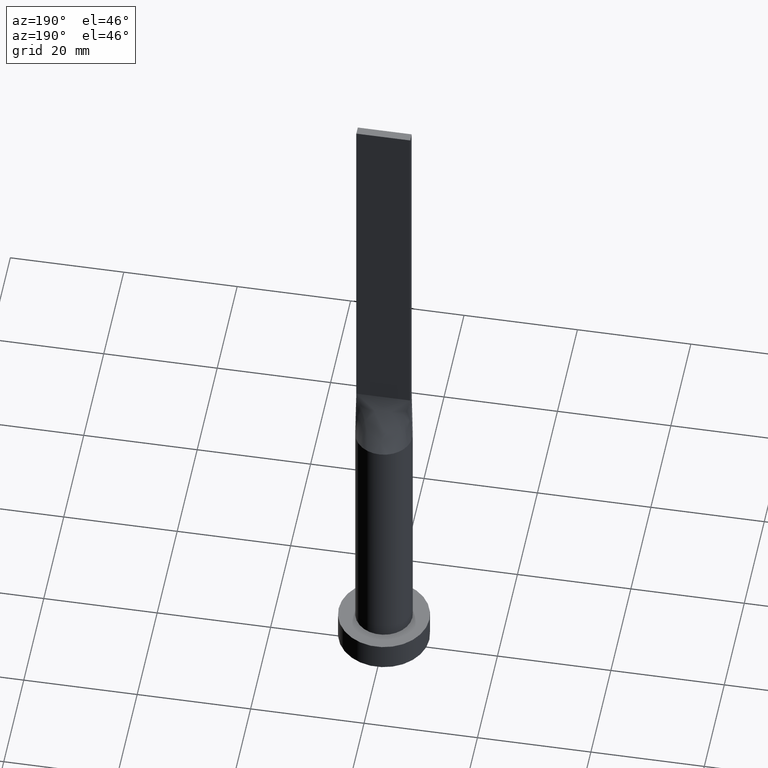
[diagram: clean part render]
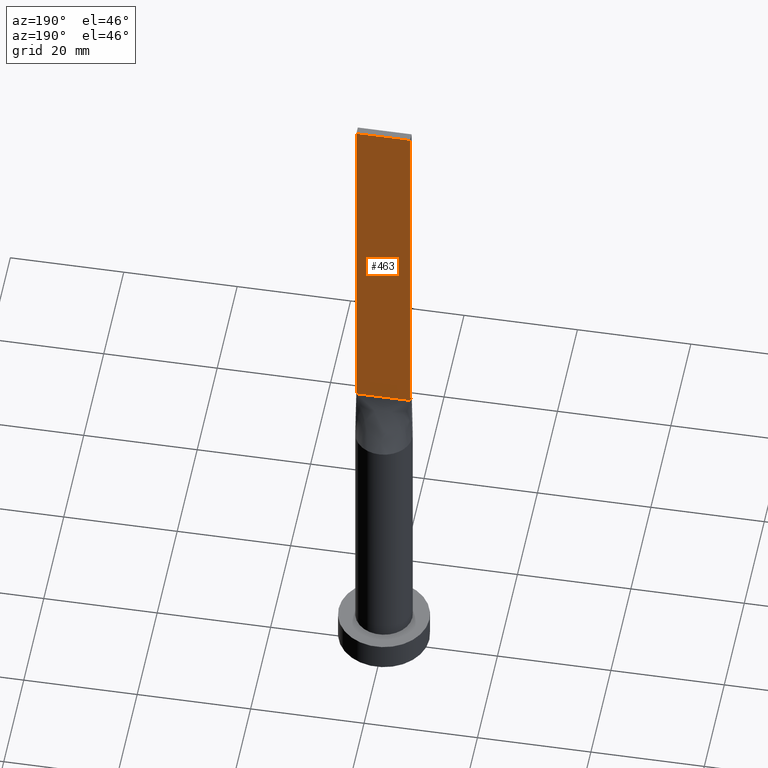
[diagram: same view with one face highlighted and labeled with its STEP entity id]
A machine part, auxiliary view. The second image highlights one B-rep face of the part: STEP entity #463.
In plain terms, the highlighted planar face has unit normal (0, -1, 0).
Its self-contained STEP definition (entity closure, byte-faithful):
#48 = EDGE_LOOP ( 'NONE', ( #394, #505, #595, #588 ) ) ;
#90 = VERTEX_POINT ( 'NONE', #338 ) ;
#120 = LINE ( 'NONE', #496, #157 ) ;
#122 = CARTESIAN_POINT ( 'NONE',  ( 4.750000000000000000, 0.7500000000000002220, 60.00000000000000000 ) ) ;
#137 = EDGE_CURVE ( 'NONE', #325, #90, #309, .T. ) ;
#157 = VECTOR ( 'NONE', #263, 1000.000000000000000 ) ;
#201 = DIRECTION ( 'NONE',  ( 0.000000000000000000, -1.000000000000000000, 0.000000000000000000 ) ) ;
#203 = EDGE_CURVE ( 'NONE', #286, #280, #277, .T. ) ;
#204 = CARTESIAN_POINT ( 'NONE',  ( 4.750000000000000000, 0.7500000000000002220, 125.0000000000000000 ) ) ;
#213 = CARTESIAN_POINT ( 'NONE',  ( 4.750000000000000000, 0.7500000000000002220, 125.0000000000000000 ) ) ;
#227 = DIRECTION ( 'NONE',  ( -0.000000000000000000, -0.000000000000000000, -1.000000000000000000 ) ) ;
#260 = VECTOR ( 'NONE', #411, 1000.000000000000000 ) ;
#263 = DIRECTION ( 'NONE',  ( -0.000000000000000000, -0.000000000000000000, -1.000000000000000000 ) ) ;
#277 = LINE ( 'NONE', #408, #484 ) ;
#280 = VERTEX_POINT ( 'NONE', #373 ) ;
#285 = AXIS2_PLACEMENT_3D ( 'NONE', #204, #201, #465 ) ;
#286 = VERTEX_POINT ( 'NONE', #213 ) ;
#309 = LINE ( 'NONE', #310, #260 ) ;
#310 = CARTESIAN_POINT ( 'NONE',  ( -4.750000000000000000, 0.7500000000000002220, 60.00000000000000000 ) ) ;
#325 = VERTEX_POINT ( 'NONE', #122 ) ;
#338 = CARTESIAN_POINT ( 'NONE',  ( -4.750000000000000000, 0.7500000000000002220, 60.00000000000000000 ) ) ;
#341 = FACE_OUTER_BOUND ( 'NONE', #48, .T. ) ;
#373 = CARTESIAN_POINT ( 'NONE',  ( -4.750000000000000000, 0.7500000000000002220, 125.0000000000000000 ) ) ;
#376 = EDGE_CURVE ( 'NONE', #286, #325, #499, .T. ) ;
#394 = ORIENTED_EDGE ( 'NONE', *, *, #137, .T. ) ;
#408 = CARTESIAN_POINT ( 'NONE',  ( 4.750000000000000000, 0.7500000000000002220, 125.0000000000000000 ) ) ;
#411 = DIRECTION ( 'NONE',  ( -1.000000000000000000, -0.000000000000000000, -0.000000000000000000 ) ) ;
#420 = DIRECTION ( 'NONE',  ( -1.000000000000000000, 0.000000000000000000, 0.000000000000000000 ) ) ;
#463 = ADVANCED_FACE ( 'NONE', ( #341 ), #516, .F. ) ;
#465 = DIRECTION ( 'NONE',  ( 0.000000000000000000, -0.000000000000000000, -1.000000000000000000 ) ) ;
#478 = VECTOR ( 'NONE', #227, 1000.000000000000000 ) ;
#484 = VECTOR ( 'NONE', #420, 1000.000000000000000 ) ;
#496 = CARTESIAN_POINT ( 'NONE',  ( -4.750000000000000000, 0.7500000000000002220, 125.0000000000000000 ) ) ;
#497 = CARTESIAN_POINT ( 'NONE',  ( 4.750000000000000000, 0.7500000000000002220, 125.0000000000000000 ) ) ;
#499 = LINE ( 'NONE', #497, #478 ) ;
#505 = ORIENTED_EDGE ( 'NONE', *, *, #604, .F. ) ;
#516 = PLANE ( 'NONE',  #285 ) ;
#588 = ORIENTED_EDGE ( 'NONE', *, *, #376, .T. ) ;
#595 = ORIENTED_EDGE ( 'NONE', *, *, #203, .F. ) ;
#604 = EDGE_CURVE ( 'NONE', #280, #90, #120, .T. ) ;